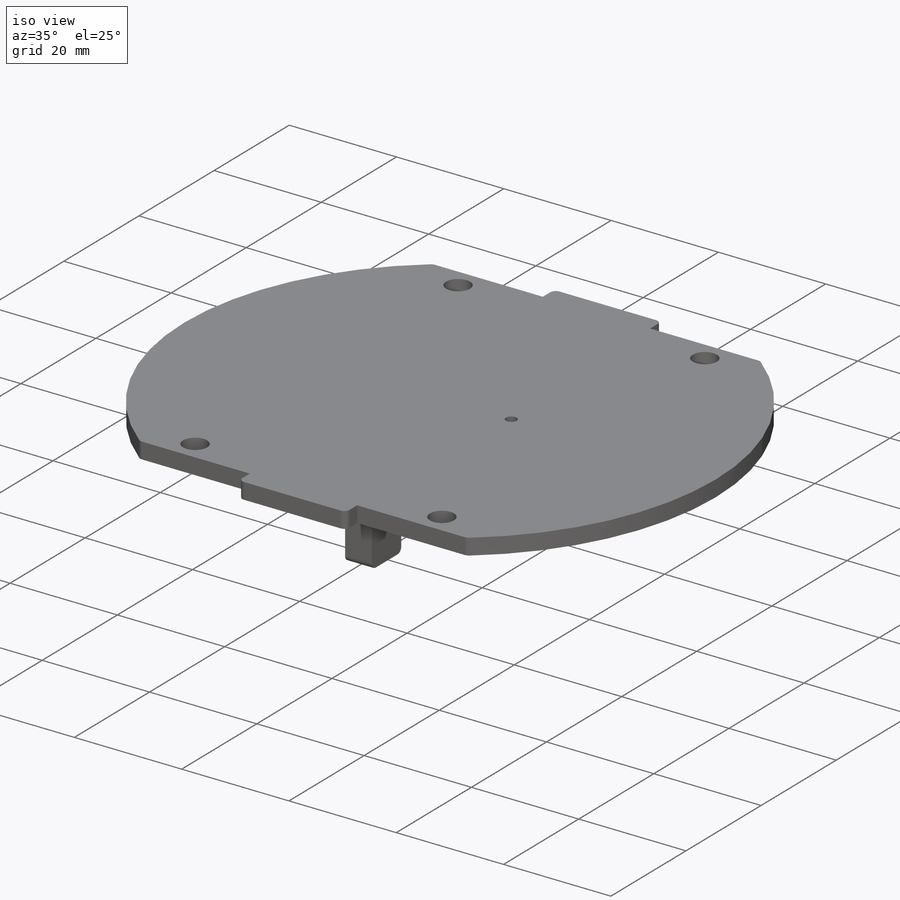
[diagram: iso view]
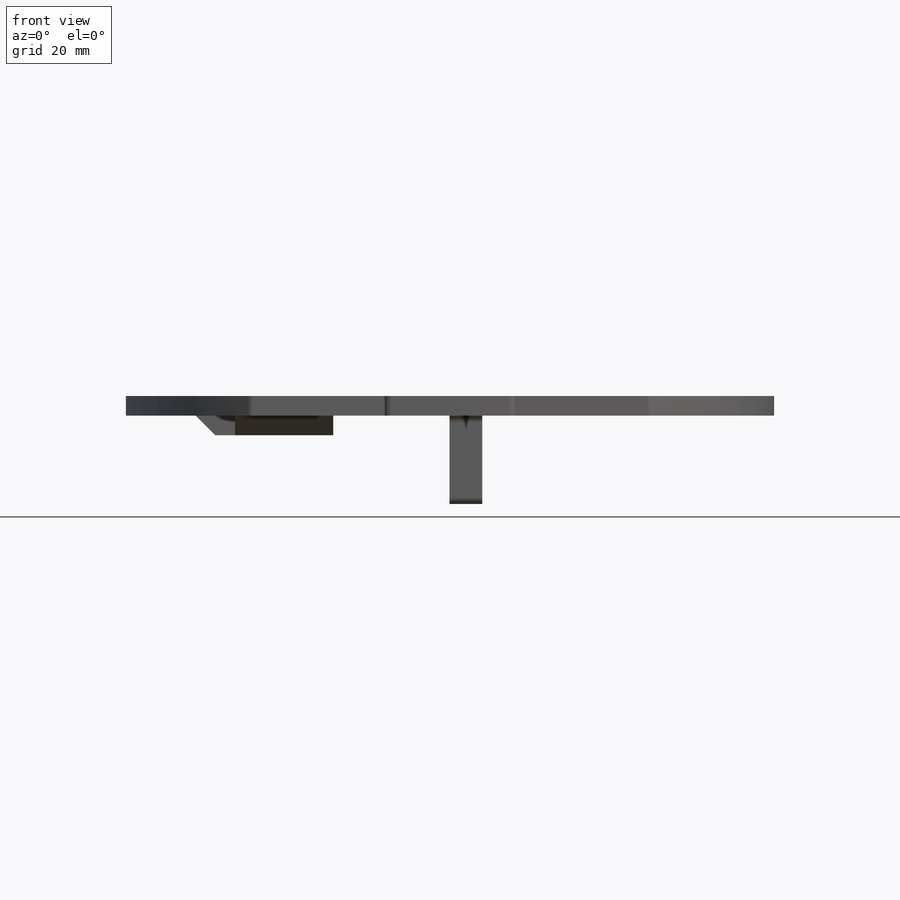
[diagram: front view]
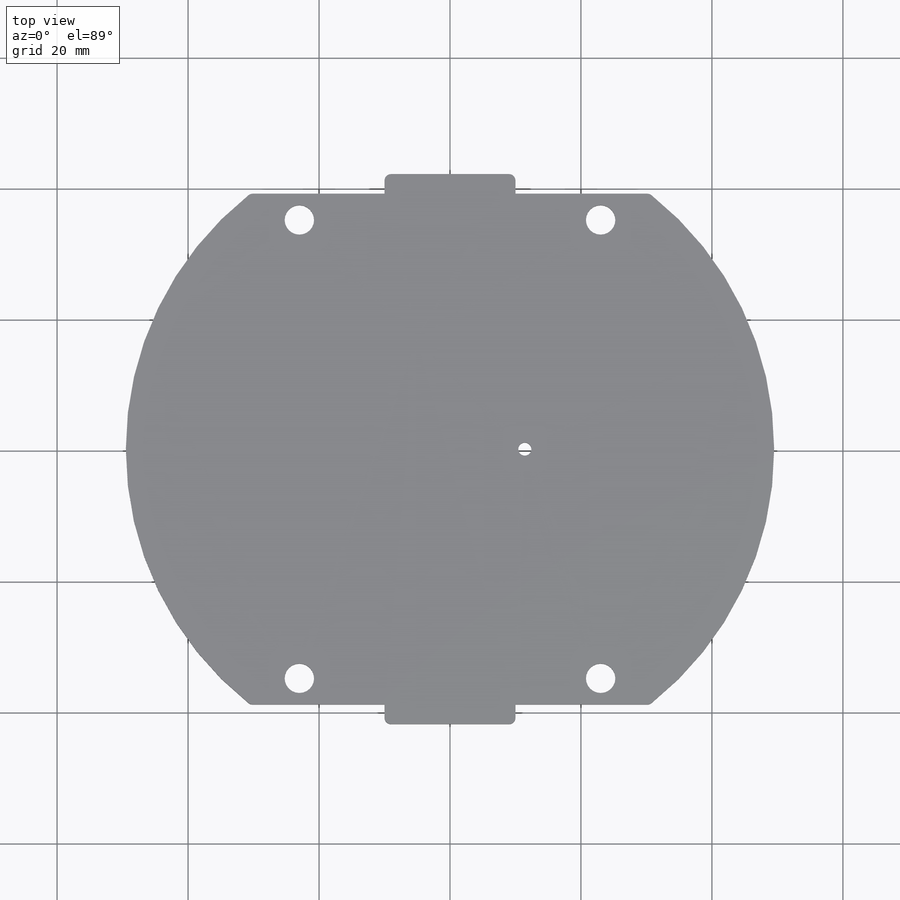
[diagram: top view]
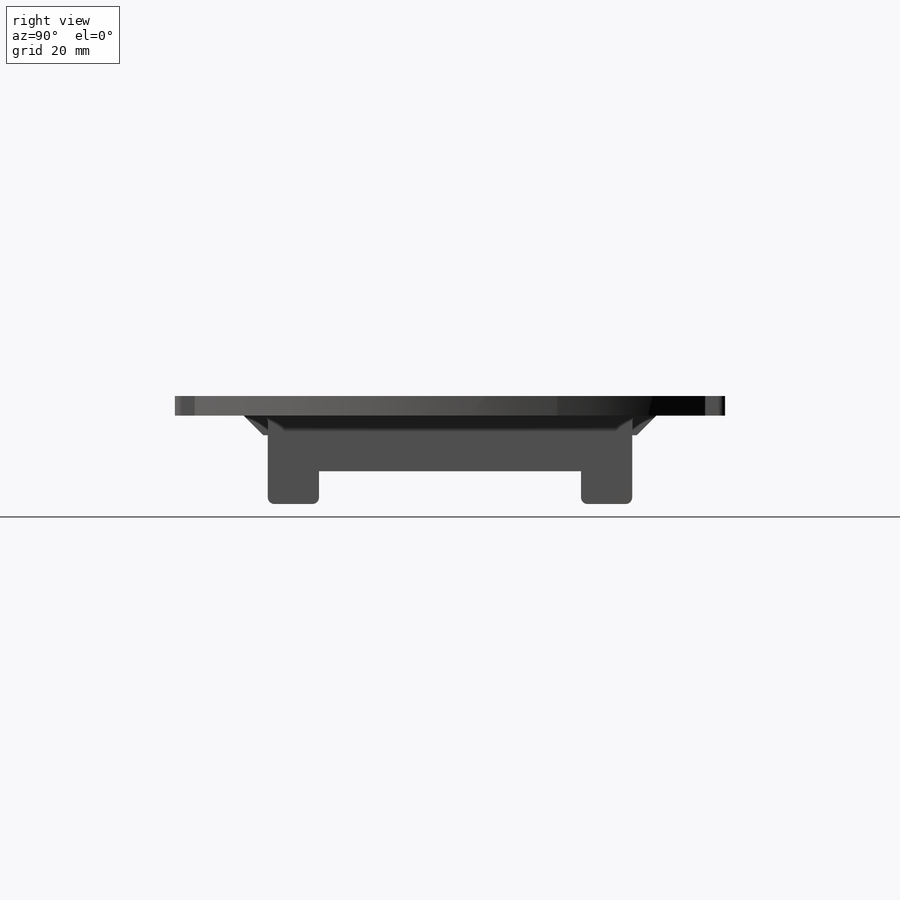
[diagram: right view]
SOLIDWORKS PART (.sldprt)
format: sldprt  version: not decoded by parser v0  size: 861,184 bytes
history: native  units: mm
features: sketch x10, extrude x8, chamfer x3, cut_extrude x2, material x1, fillet x1 + 1 further entry (+19 scaffold rows collapsed; 5 parser-record rows omitted)
feature tree (50):
  scaffold x19  (default folders/planes/origin — collapsed)
  material  "ABS"
  "a_base_t42"
  parser-record x5  (decoder bookkeeping rows leaked as tree rows — omitted from the tree; the rows remain in map.json)
  sketch  "Sketch1"  dims[D1=0.0mm D2=3.0mm]
  cut_extrude  "Outer Rim Cut"  [1 undecoded]
  sketch  "Sketch2"  dims[D1=20.0mm D2=3.0mm]
  extrude  "Flanges"  [1 undecoded]
  fillet  "Contouring"  Radius=1mm
  sketch  "Sketch9"  dims[D2=2.0mm D1=11.425mm]
  cut_extrude  "Single Tendon Port"  [1 undecoded]
  sketch  "Sketch3"  dims[D1=15.0mm D2=3.0mm D3=25.5mm D4=10.0mm D5=44.25mm]
  extrude  "Base Supports"  Depth=3mm
  chamfer  "Base Supports Chamfer"  Distance=3mm Angle=45deg
  sketch  "Sketch10"
  extrude  "Cover"  [1 undecoded]
  sketch  "Sketch4"  dims[D1=45.0mm D2=6.25mm]
  extrude  "Dynamixel Side Supports"  Depth=6.85mm
  sketch  "Sketch5"  dims[D1=12.0mm]
  extrude  "Dynamixel Side Support Ends"  Depth=9.85mm
  sketch  "Sketch8"
  extrude  "Dynamixel Offset"  Depth=1.25mm
  chamfer  "Dynamixel Contouring"  Distance=1mm
  sketch  "Sketch6"  dims[c1.D1=5.0mm c1.D2=57.5mm c1.D3=55.64mm c2.D2=6.5mm]
  extrude  "Servo Side Supports"  Depth=8.5mm
  sketch  "Sketch7"  dims[D1=40.0mm]
  extrude  "Servo Side Support Ends"  Depth=5mm
  chamfer  "Servo Contouring"  Distance=1mm
decode coverage: 18 of 24 modeling features carry decoded parameters; 1 rows unclassified (native names shown)
note: 4 parameter values undecoded
summary: no parameter record found for 4 features
note: suppression state not decoded; provenance and decode notes live in map.json
